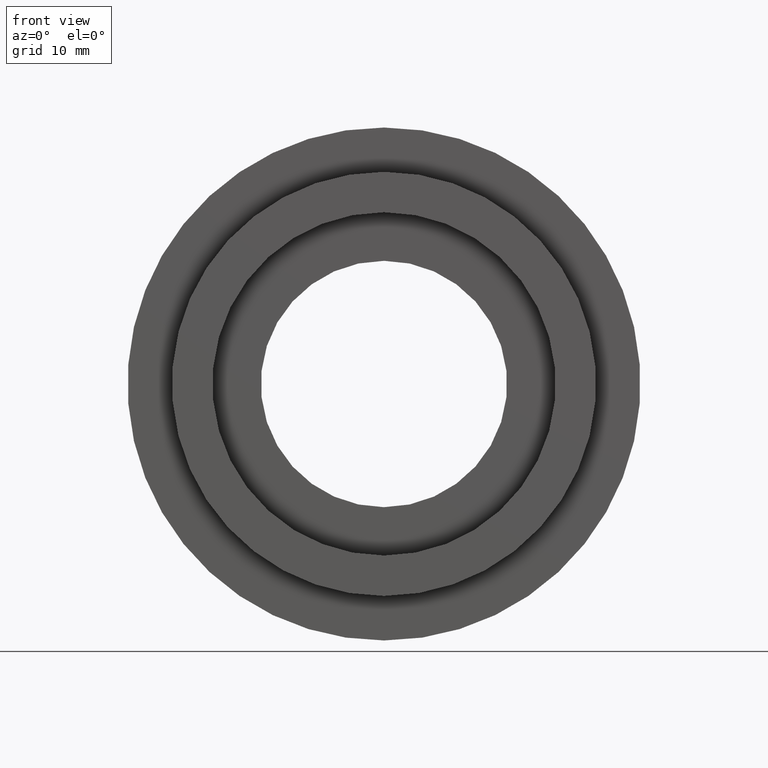
[diagram: clean part render]
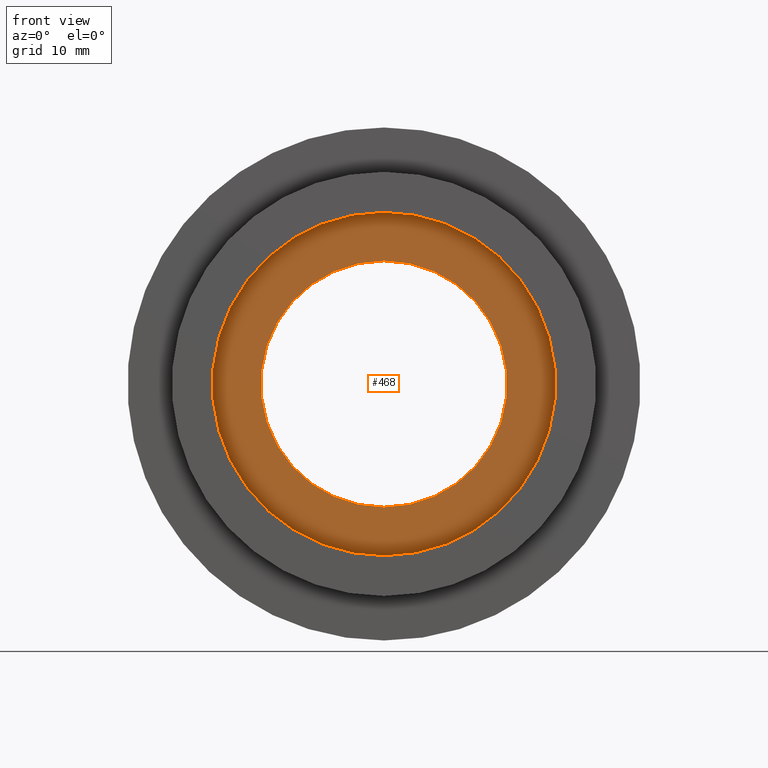
[diagram: same view with one face highlighted and labeled with its STEP entity id]
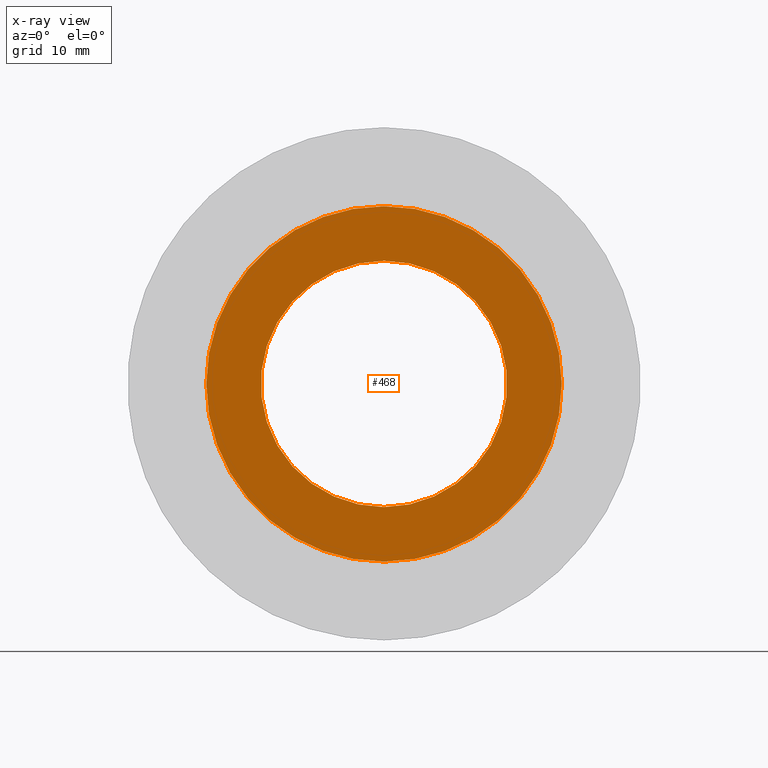
[diagram: x-ray of the same camera — body ghosted, the highlighted face saturated]
A machine part, front view. The second image highlights one B-rep face of the part: STEP entity #468.
The next image is the same camera in x-ray: the body ghosted, the highlighted face saturated — about 0% of this face is hidden behind the body in this view.
In plain terms, the highlighted planar face has unit normal (-0, 1, 0).
Its self-contained STEP definition (entity closure, byte-faithful):
#5 = CARTESIAN_POINT ( 'NONE',  ( 0.0000000000000000000, 4.999999999999999100, 0.0000000000000000000 ) ) ;
#26 = VERTEX_POINT ( 'NONE', #355 ) ;
#36 = EDGE_CURVE ( 'NONE', #145, #303, #224, .T. ) ;
#62 = AXIS2_PLACEMENT_3D ( 'NONE', #5, #167, #277 ) ;
#100 = AXIS2_PLACEMENT_3D ( 'NONE', #553, #162, #122 ) ;
#122 = DIRECTION ( 'NONE',  ( 0.0000000000000000000, 0.0000000000000000000, 1.000000000000000000 ) ) ;
#134 = PLANE ( 'NONE',  #265 ) ;
#144 = DIRECTION ( 'NONE',  ( -0.0000000000000000000, 1.000000000000000000, -0.0000000000000000000 ) ) ;
#145 = VERTEX_POINT ( 'NONE', #280 ) ;
#147 = AXIS2_PLACEMENT_3D ( 'NONE', #429, #144, #455 ) ;
#151 = CARTESIAN_POINT ( 'NONE',  ( 0.0000000000000000000, 4.999999999999999100, 0.0000000000000000000 ) ) ;
#162 = DIRECTION ( 'NONE',  ( -0.0000000000000000000, 1.000000000000000000, -0.0000000000000000000 ) ) ;
#167 = DIRECTION ( 'NONE',  ( -0.0000000000000000000, 1.000000000000000000, -0.0000000000000000000 ) ) ;
#180 = AXIS2_PLACEMENT_3D ( 'NONE', #151, #225, #228 ) ;
#181 = CARTESIAN_POINT ( 'NONE',  ( 2.155378366499341600E-015, 4.999999999999999100, -17.60000000000000100 ) ) ;
#194 = EDGE_CURVE ( 'NONE', #480, #26, #407, .T. ) ;
#199 = EDGE_LOOP ( 'NONE', ( #337, #313 ) ) ;
#200 = CARTESIAN_POINT ( 'NONE',  ( 1.494069094959771100E-015, 4.999999999999999100, -12.20000000000000100 ) ) ;
#224 = CIRCLE ( 'NONE', #100, 12.20000000000000100 ) ;
#225 = DIRECTION ( 'NONE',  ( -0.0000000000000000000, 1.000000000000000000, -0.0000000000000000000 ) ) ;
#228 = DIRECTION ( 'NONE',  ( 0.0000000000000000000, 0.0000000000000000000, 1.000000000000000000 ) ) ;
#254 = FACE_BOUND ( 'NONE', #199, .T. ) ;
#265 = AXIS2_PLACEMENT_3D ( 'NONE', #425, #488, #393 ) ;
#277 = DIRECTION ( 'NONE',  ( 0.0000000000000000000, 0.0000000000000000000, 1.000000000000000000 ) ) ;
#280 = CARTESIAN_POINT ( 'NONE',  ( 0.0000000000000000000, 4.999999999999999100, 12.20000000000000100 ) ) ;
#303 = VERTEX_POINT ( 'NONE', #200 ) ;
#308 = CIRCLE ( 'NONE', #62, 17.60000000000000100 ) ;
#313 = ORIENTED_EDGE ( 'NONE', *, *, #466, .T. ) ;
#322 = EDGE_LOOP ( 'NONE', ( #573, #386 ) ) ;
#337 = ORIENTED_EDGE ( 'NONE', *, *, #36, .T. ) ;
#353 = EDGE_CURVE ( 'NONE', #26, #480, #308, .T. ) ;
#355 = CARTESIAN_POINT ( 'NONE',  ( 0.0000000000000000000, 4.999999999999999100, 17.60000000000000100 ) ) ;
#386 = ORIENTED_EDGE ( 'NONE', *, *, #194, .F. ) ;
#393 = DIRECTION ( 'NONE',  ( 0.0000000000000000000, 0.0000000000000000000, 1.000000000000000000 ) ) ;
#407 = CIRCLE ( 'NONE', #180, 17.60000000000000100 ) ;
#425 = CARTESIAN_POINT ( 'NONE',  ( 17.60000000000000100, 4.999999999999999100, 0.0000000000000000000 ) ) ;
#429 = CARTESIAN_POINT ( 'NONE',  ( 0.0000000000000000000, 4.999999999999999100, 0.0000000000000000000 ) ) ;
#433 = FACE_OUTER_BOUND ( 'NONE', #322, .T. ) ;
#455 = DIRECTION ( 'NONE',  ( 0.0000000000000000000, 0.0000000000000000000, 1.000000000000000000 ) ) ;
#466 = EDGE_CURVE ( 'NONE', #303, #145, #601, .T. ) ;
#468 = ADVANCED_FACE ( 'NONE', ( #433, #254 ), #134, .F. ) ;
#480 = VERTEX_POINT ( 'NONE', #181 ) ;
#488 = DIRECTION ( 'NONE',  ( -0.0000000000000000000, 1.000000000000000000, 0.0000000000000000000 ) ) ;
#553 = CARTESIAN_POINT ( 'NONE',  ( 0.0000000000000000000, 4.999999999999999100, 0.0000000000000000000 ) ) ;
#573 = ORIENTED_EDGE ( 'NONE', *, *, #353, .F. ) ;
#601 = CIRCLE ( 'NONE', #147, 12.20000000000000100 ) ;